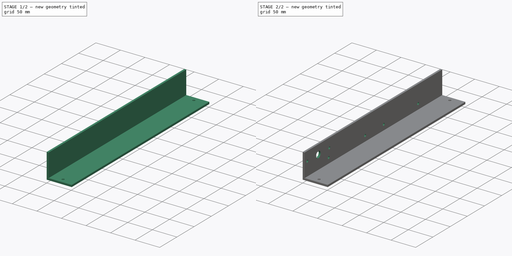
[diagram: build sequence overview — one tinted view per stage of 2, left to right]
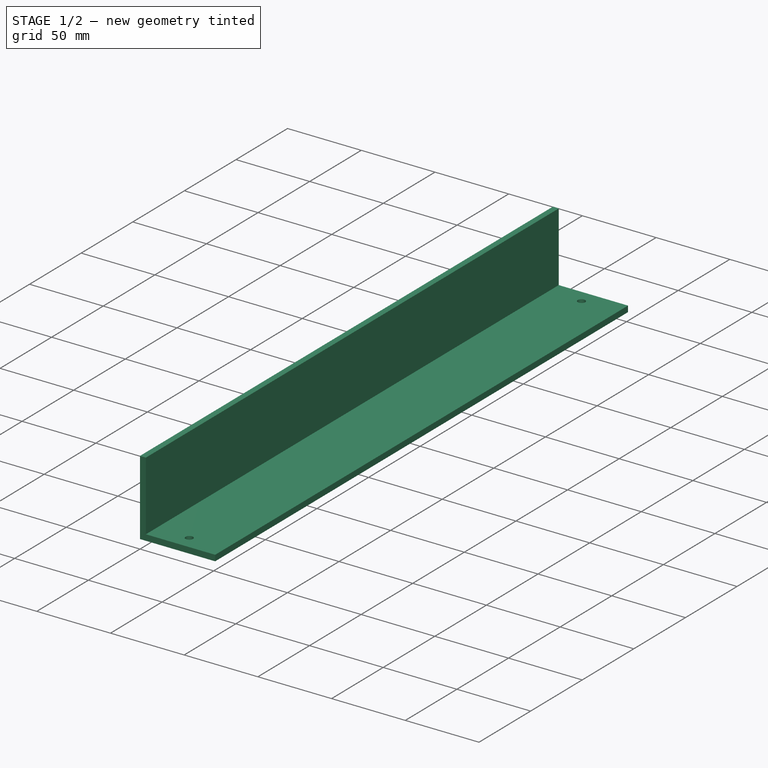
[diagram: stage 1 of 2 — iso view after this stage's code; geometry added in this stage tinted green]
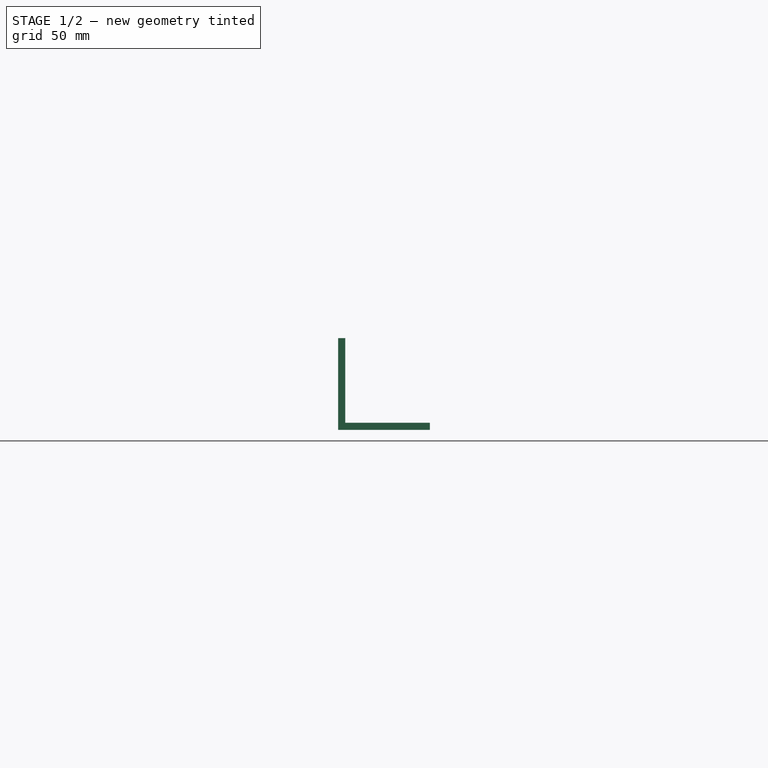
[diagram: stage 1 of 2 — front view after this stage's code; geometry added in this stage tinted green]
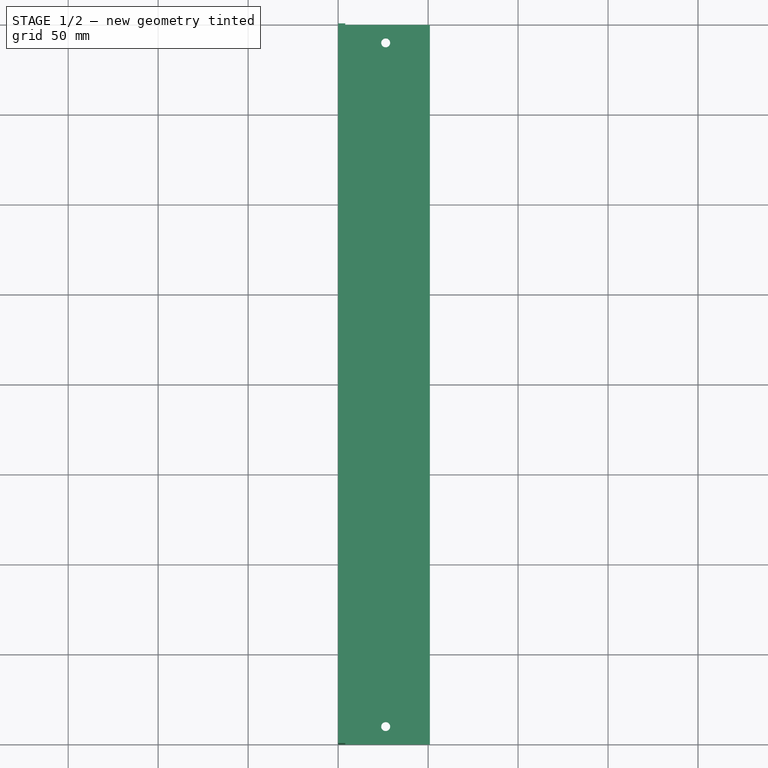
[diagram: stage 1 of 2 — top view after this stage's code; geometry added in this stage tinted green]
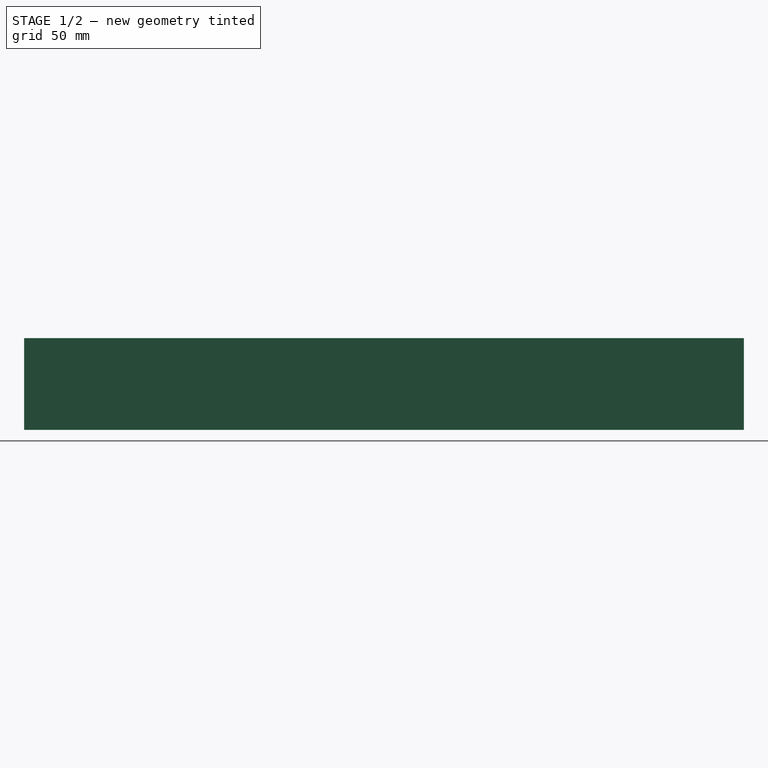
[diagram: stage 1 of 2 — right view after this stage's code; geometry added in this stage tinted green]
FCSTD DOCUMENT  (FreeCAD 0.15R4671 (Git))
Label: MainUpperCorner
License: All rights reserved
LicenseURL: http://en.wikipedia.org/wiki/All_rights_reserved
objects: Sketcher::SketchObject×4, Drawing::FeatureViewPart×4, PartDesign::Pocket×2, PartDesign::Pad×1, Drawing::FeaturePage×1
note: 10 computed .brp shape members not serialized (recipe doc carries the construction recipe); baked Part::Feature solids carry a one-line shape summary decoded from their .brp

FEATURE [Sketcher::SketchObject] Sketch
  Placement = pos=(0,0,0) rot=(1,0,0;1.5708rad)
  sketch-geometry (6):
    g0: LineSegment StartX=0 StartY=51 StartZ=0 EndX=0 EndY=0 EndZ=0
    g1: LineSegment StartX=0 StartY=0 StartZ=0 EndX=51 EndY=0 EndZ=0
    g2: LineSegment StartX=51 StartY=0 StartZ=0 EndX=51 EndY=4 EndZ=0
    g3: LineSegment StartX=51 StartY=4 StartZ=0 EndX=4 EndY=4 EndZ=0
    g4: LineSegment StartX=4 StartY=4 StartZ=0 EndX=4 EndY=51 EndZ=0
    g5: LineSegment StartX=4 StartY=51 StartZ=0 EndX=0 EndY=51 EndZ=0
  constraints (17):
    c: PointOnObject(g0,g-2)
    c: Coincident(g0,g-1)
    c: Coincident(g0,g1)
    c: Coincident(g1,g2)
    c: Vertical(g2)
    c: Coincident(g2,g3)
    c: Coincident(g3,g4)
    c: Coincident(g4,g5)
    c: Coincident(g5,g0)
    c: Horizontal(g5)
    c: Vertical(g4)
    c: DistanceY(g0) = -51
    c: DistanceX(g1) = 51
    c: DistanceY(g2) = 4
    c: Horizontal(g3)
    c: Horizontal(g1)
    c: DistanceX(g5) = -4
FEATURE [PartDesign::Pad] Pad
  Length = 400
  Length2 = 100
  Midplane = true
  Placement = pos=(0,0,0) rot=(1,0,0;1.5708rad)
  Sketch = -> Sketch
  Type = 0
FEATURE [Sketcher::SketchObject] Sketch001
  Placement = pos=(0,0,4) rot=(0,0,1;3.14159rad)
  Support = -> Pad [Face4]
  sketch-geometry (2):
    g0: Circle CenterX=-26.4358 CenterY=190 CenterZ=0 NormalX=0 NormalY=0 NormalZ=1 Radius=2.5
    g1: Circle CenterX=-26.4358 CenterY=-190 CenterZ=0 NormalX=0 NormalY=0 NormalZ=1 Radius=2.5
  constraints (4):
    c: Symmetric(g0,g1,g-1)
    c: DistanceY(g1,g0) = 380
    c: Equal(g1,g0)
    c: Radius(g1) = 2.5
FEATURE [PartDesign::Pocket] Pocket
  Length = 5
  Midplane = true
  Placement = pos=(0,0,0) rot=(1,0,0;1.5708rad)
  Sketch = -> Sketch001
  Type = 1
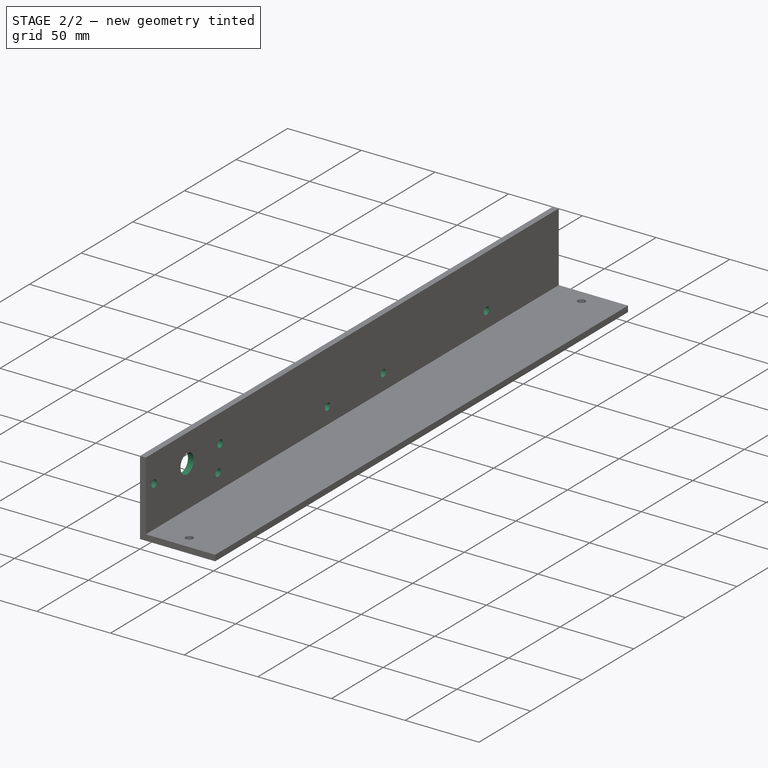
[diagram: stage 2 of 2 — iso view after this stage's code; geometry added in this stage tinted green]
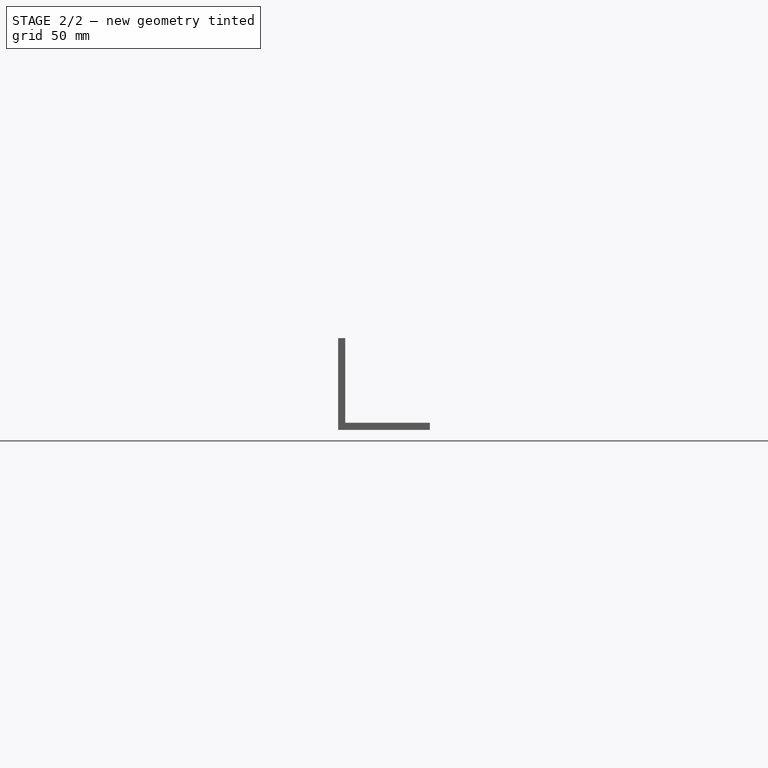
[diagram: stage 2 of 2 — front view after this stage's code; geometry added in this stage tinted green]
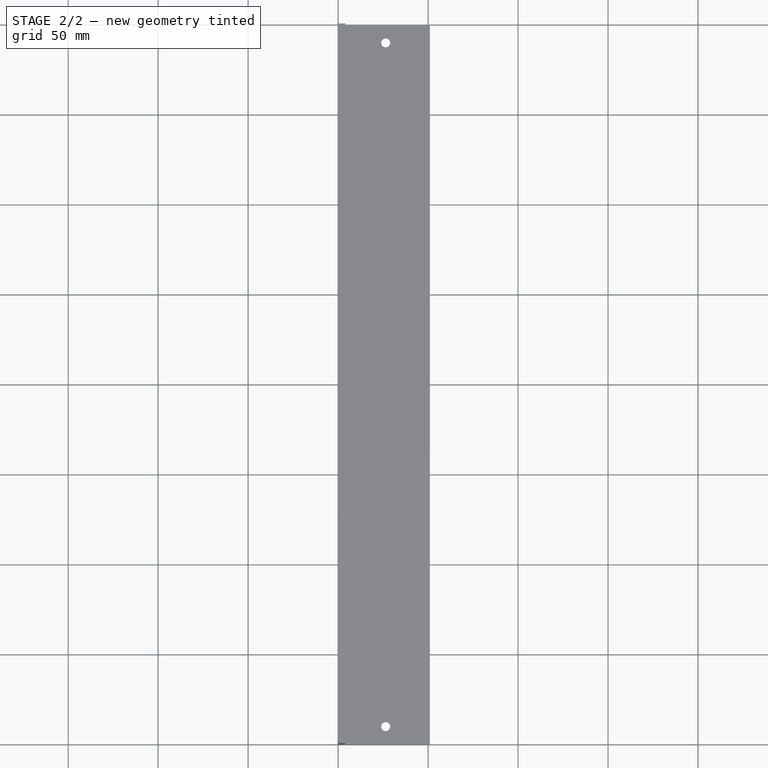
[diagram: stage 2 of 2 — top view after this stage's code; geometry added in this stage tinted green]
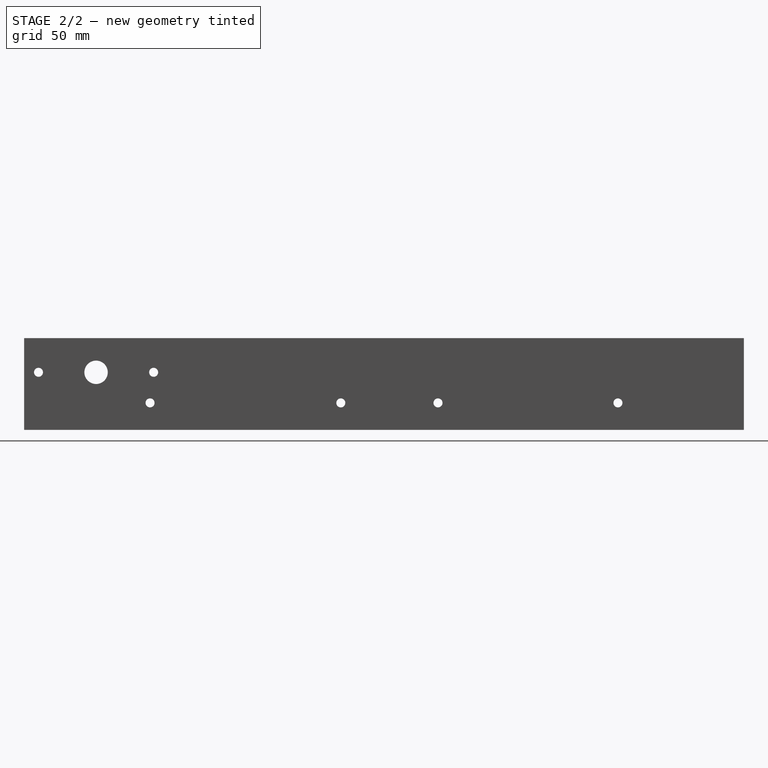
[diagram: stage 2 of 2 — right view after this stage's code; geometry added in this stage tinted green]
FEATURE [Sketcher::SketchObject] Sketch002
  Placement = pos=(0,0,0) rot=(0.707107,0,-0.707107;3.14159rad)
  Support = -> Pocket [Face1]
FEATURE [Sketcher::SketchObject] Sketch003
  Placement = pos=(0,0,0) rot=(0.707107,0,-0.707107;3.14159rad)
  Support = -> Pocket [Face1]
  sketch-geometry (7):
    g0: Circle CenterX=-15 CenterY=130 CenterZ=0 NormalX=0 NormalY=0 NormalZ=1 Radius=2.5
    g1: Circle CenterX=-15 CenterY=-130 CenterZ=0 NormalX=0 NormalY=0 NormalZ=1 Radius=2.5
    g2: Circle CenterX=-15 CenterY=-30 CenterZ=0 NormalX=0 NormalY=0 NormalZ=1 Radius=2.5
    g3: Circle CenterX=-15 CenterY=24 CenterZ=0 NormalX=0 NormalY=0 NormalZ=1 Radius=2.5
    g4: Circle CenterX=-32 CenterY=160 CenterZ=0 NormalX=0 NormalY=0 NormalZ=1 Radius=6.5
    g5: Circle CenterX=-32 CenterY=192 CenterZ=0 NormalX=0 NormalY=0 NormalZ=1 Radius=2.5
    g6: Circle CenterX=-32 CenterY=128 CenterZ=0 NormalX=0 NormalY=0 NormalZ=1 Radius=2.5
  constraints (20):
    c: DistanceY(g-1,g0) = 130
    c: DistanceY(g-1,g1) = -130
    c: Equal(g1,g0)
    c: Radius(g1) = 2.5
    c: DistanceX(g-1,g0) = -15
    c: DistanceX(g-1,g1) = -15
    c: Equal(g2,g1)
    c: DistanceY(g2,g1) = -100
    c: Equal(g0,g3)
    c: DistanceY(g3,g0) = 106
    c: DistanceX(g-1,g4) = -32
    c: Radius(g4) = 6.5
    c: DistanceY(g-1,g4) = 160
    c: DistanceX(g-1,g3) = -15
    c: DistanceX(g-1,g2) = -15
    c: Radius(g5) = 2.5
    c: DistanceY(g4,g5) = 32
    c: DistanceX(g-1,g5) = -32
    c: Equal(g6,g5)
    c: Symmetric(g6,g5,g4)
FEATURE [PartDesign::Pocket] Pocket001
  Length = 5
  Placement = pos=(0,0,0) rot=(1,0,0;1.5708rad)
  Sketch = -> Sketch003
  Type = 1
FEATURE [Drawing::FeatureViewPart] Ortho  label="Ortho_0_0"
  Direction = (1,0,0)
  HiddenWidth = 0.15
  LineWidth = 0.35
  Rotation = -90
  Scale = 0.375
  ShowHiddenLines = false
  ShowSmoothLines = false
  Source = -> Pocket001
  Tolerance = 0.05
  ViewResult = <g id="Ortho_0_0"\n   transform="rotate(-90,125,150) translate(125,150) scale(0.375,0.375)"\n  >\n<g   stroke="rgb(0, 0, 0)"\n   stroke-width="0.933333"\n   stroke-linecap="butt"\n   stroke-linejoin="miter"\n   fill="none"\n   transform="scale(1,-1)"\n  >\n<path id= "1" d=" M 51 -200 L 51 200 " />\n<path id= "2" d=" M -1.9984e-13 -200 L 4 -200 " />\n<path id= "3" d=" M 4 -200 L 51 -200 " />\n<path id= "4" d=" M 1.9984e-13 200 L 4 200 " />\n<path id= "5" d=" M 4 200 L 51 200 " />\n<path id= "6" d=" M -1.9984e-13 -200 L 1.9984e-13 200 " />\n<path d="M1.29063e-13,192.5 L1.29001e-13,192.437  L1.28816e-13,192.252  L1.28518e-13,191.955  L1.28123e-13,191.559  L1.27649e-13,191.085  L1.27121e-13,190.556  L1.26565e-13,190  L1.2601e-13,189.444  L1.25482e-13,188.915  L1.25008e-13,188.441  L1.24612e-13,188.045  L1.24315e-13,187.748  L1.2413e-13,187.563  L1.24067e-13,187.5 " /><circle cx ="15" cy ="-130" r ="2.5" /><circle cx ="15" cy ="-30" r ="2.5" /><circle cx ="15" cy ="130" r ="2.5" /><circle cx ="15" cy ="24" r ="2.5" /><circle cx ="32" cy ="160" r ="6.5" /><circle cx ="32" cy ="128" r ="2.5" /><circle cx ="32" cy ="192" r ="2.5" /><path id= "15" d=" M 4 -200 L 4 200 " />\n<path d="M4,-187.5 L4,-187.563  L4,-187.748  L4,-188.045  L4,-188.441  L4,-188.915  L4,-189.444  L4,-190  L4,-190.556  L4,-191.085  L4,-191.559  L4,-191.955  L4,-192.252  L4,-192.437  L4,-192.5 " /></g>\n</g>
  Visible = true
  X = 125
  Y = 150
FEATURE [Drawing::FeatureViewPart] Ortho001  label="Ortho_1_0"
  Direction = (0,1,0)
  HiddenWidth = 0.15
  LineWidth = 0.35
  Rotation = -90
  Scale = 0.375
  ShowHiddenLines = false
  ShowSmoothLines = false
  Source = -> Pocket001
  Tolerance = 0.05
  ViewResult = <g id="Ortho_1_0"\n   transform="rotate(-90,250,150) translate(250,150) scale(0.375,0.375)"\n  >\n<g   stroke="rgb(0, 0, 0)"\n   stroke-width="0.933333"\n   stroke-linecap="butt"\n   stroke-linejoin="miter"\n   fill="none"\n   transform="scale(1,-1)"\n  >\n<path id= "1" d=" M 51 0 L -2.06057e-13 0 " />\n<path d="M17.5,-3.88578e-15 L17.4373,-3.87186e-15  L17.2524,-3.83081e-15  L16.9546,-3.76467e-15  L16.5587,-3.67678e-15  L16.0847,-3.57152e-15  L15.5563,-3.45419e-15  L15,-3.33067e-15  L14.4437,-3.20715e-15  L13.9153,-3.08982e-15  L13.4413,-2.98456e-15  L13.0454,-2.89667e-15  L12.7476,-2.83053e-15  L12.5627,-2.78948e-15  L12.5,-2.77556e-15 " /><path d="M38.5,-8.54872e-15 L38.337,-8.51253e-15  L37.8563,-8.40579e-15  L37.0819,-8.23384e-15  L36.0527,-8.0053e-15  L34.8202,-7.73165e-15  L33.4464,-7.42659e-15  L32,-7.10543e-15  L30.5536,-6.78427e-15  L29.1798,-6.47921e-15  L27.9473,-6.20555e-15  L26.9181,-5.97702e-15  L26.1437,-5.80507e-15  L25.663,-5.69832e-15  L25.5,-5.66214e-15 " /><path d="M34.5,-7.66054e-15 L34.4373,-7.64662e-15  L34.2524,-7.60557e-15  L33.9546,-7.53943e-15  L33.5587,-7.45153e-15  L33.0847,-7.34628e-15  L32.5563,-7.22895e-15  L32,-7.10543e-15  L31.4437,-6.9819e-15  L30.9153,-6.86457e-15  L30.4413,-6.75932e-15  L30.0454,-6.67142e-15  L29.7476,-6.60529e-15  L29.5627,-6.56423e-15  L29.5,-6.55032e-15 " /><path id= "5" d=" M 51 4 L 51 -4.44089e-16 " />\n<path id= "6" d=" M -1.9984e-13 0 L -1.9984e-13 51 " />\n<path id= "7" d=" M -1.9984e-13 51 L 4 51 " />\n<path id= "8" d=" M 4 51 L 4 4 " />\n<path id= "9" d=" M 4 4 L 51 4 " />\n<path d="M4,28.9358 L4,28.8731  L4,28.6882  L4,28.3903  L4,27.9945  L4,27.5205  L4,26.9921  L4,26.4358  L4,25.8795  L4,25.3511  L4,24.877  L4,24.4812  L4,24.1833  L4,23.9984  L4,23.9358 " /></g>\n</g>
  Visible = true
  X = 250
  Y = 150
FEATURE [Drawing::FeatureViewPart] Ortho002  label="Ortho_1_1"
  Direction = (0.57735,0.57735,0.57735)
  HiddenWidth = 0.15
  LineWidth = 0.35
  Rotation = 120
  Scale = 0.375
  ShowHiddenLines = false
  ShowSmoothLines = false
  Source = -> Pocket001
  Tolerance = 0.05
  ViewResult = <blob: 3176 chars omitted>
  Visible = true
  X = 230
  Y = 60
FEATURE [Drawing::FeatureViewPart] Ortho003  label="Ortho_0_1"
  Direction = (0,0,1)
  HiddenWidth = 0.15
  LineWidth = 0.35
  Rotation = 90
  Scale = 0.375
  ShowHiddenLines = false
  ShowSmoothLines = false
  Source = -> Pocket001
  Tolerance = 0.05
  ViewResult = <blob: 2789 chars omitted>
  Visible = true
  X = 125
  Y = 80
FEATURE [Drawing::FeaturePage] Page
  EditableTexts = Siqueira | Siqueira | Pindí | Drawing | Main corner | 0023 | 2015-06-21
  Group = -> [Ortho,Ortho001,Ortho002,Ortho003]
  Template = <path>
note: 1 file-system path scrubbed to <path> (originals preserved in the JSON sidecar)
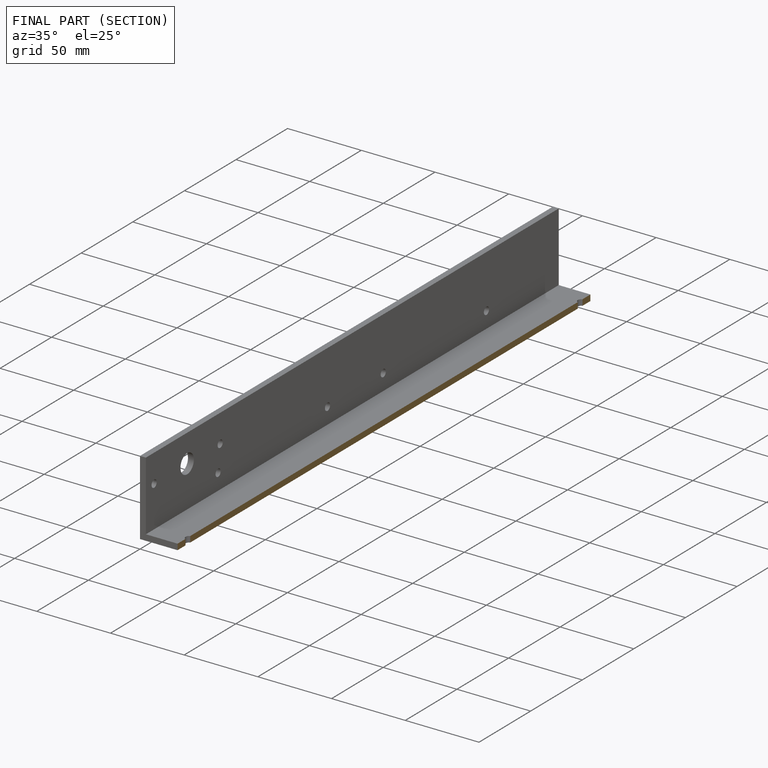
[diagram: finished part — half-section view (interior)]
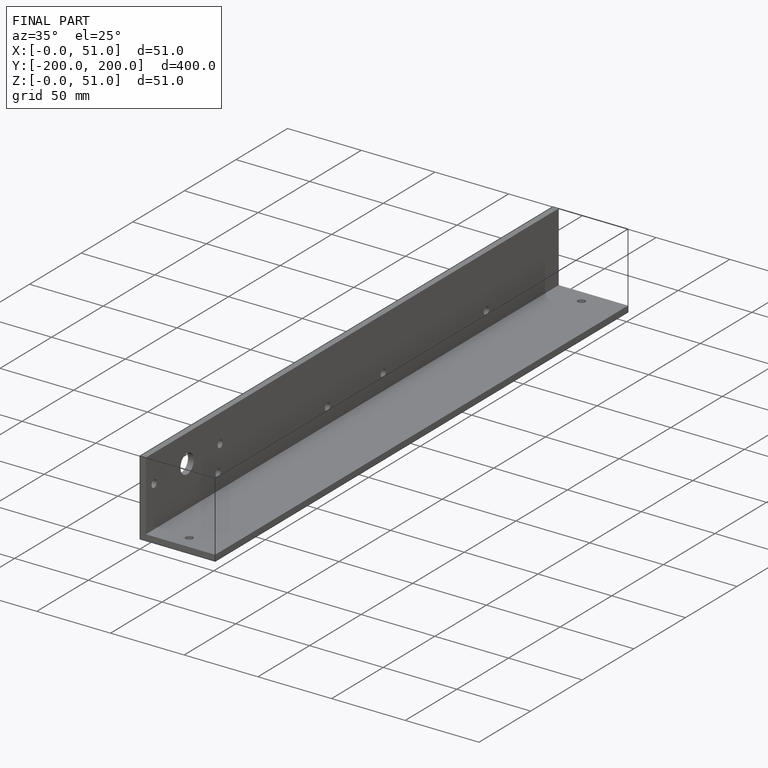
[diagram: finished part — iso view with bounding-box wireframe]
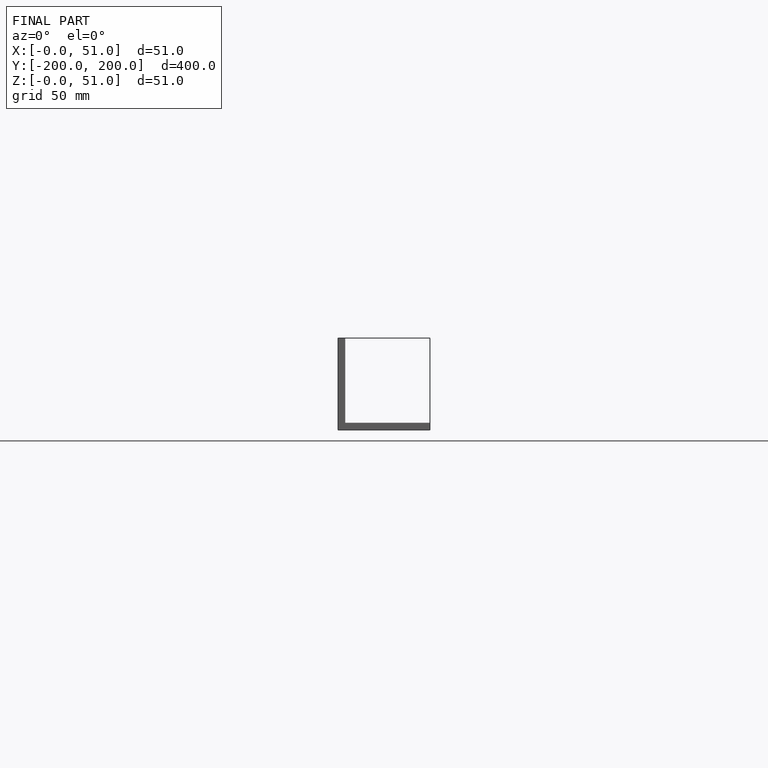
[diagram: finished part — front view with bounding-box wireframe]
